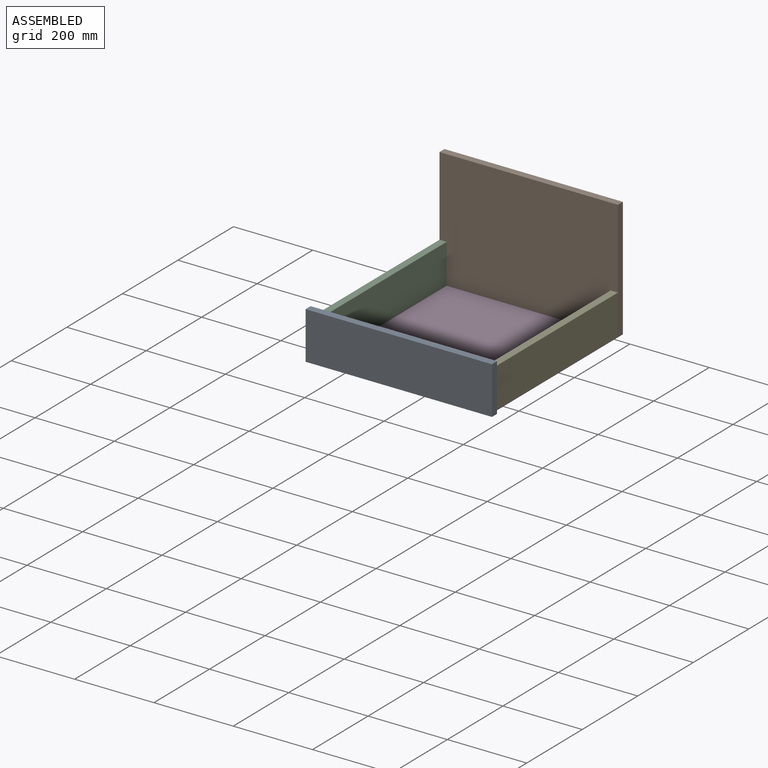
[diagram: assembled view]
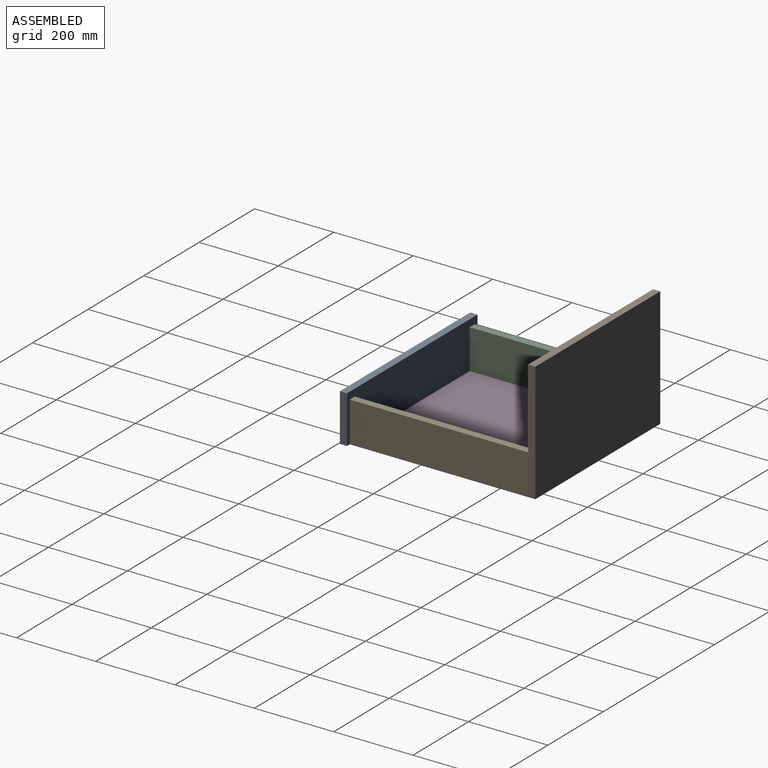
[diagram: assembled view, second angle]
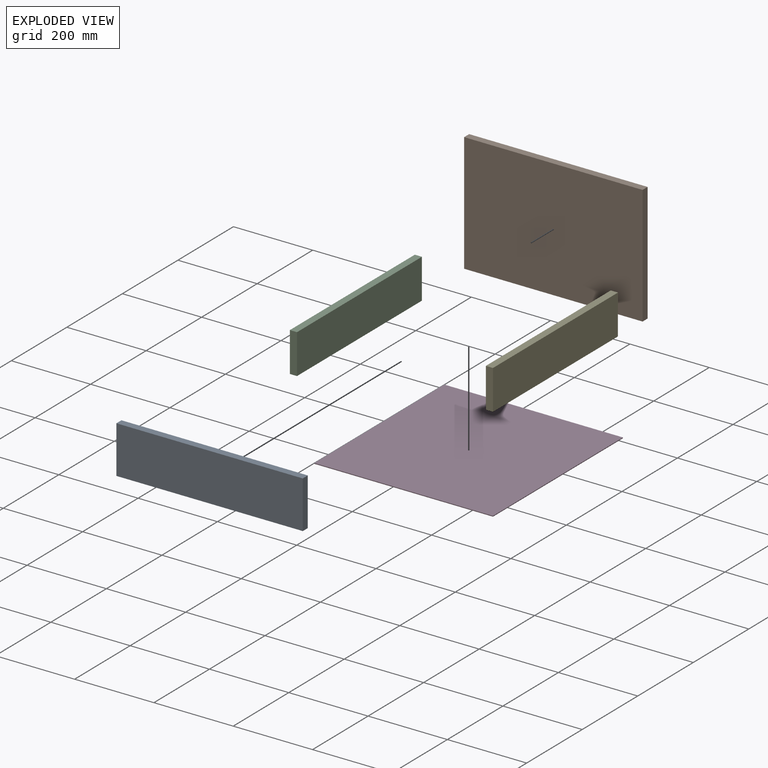
[diagram: exploded view]
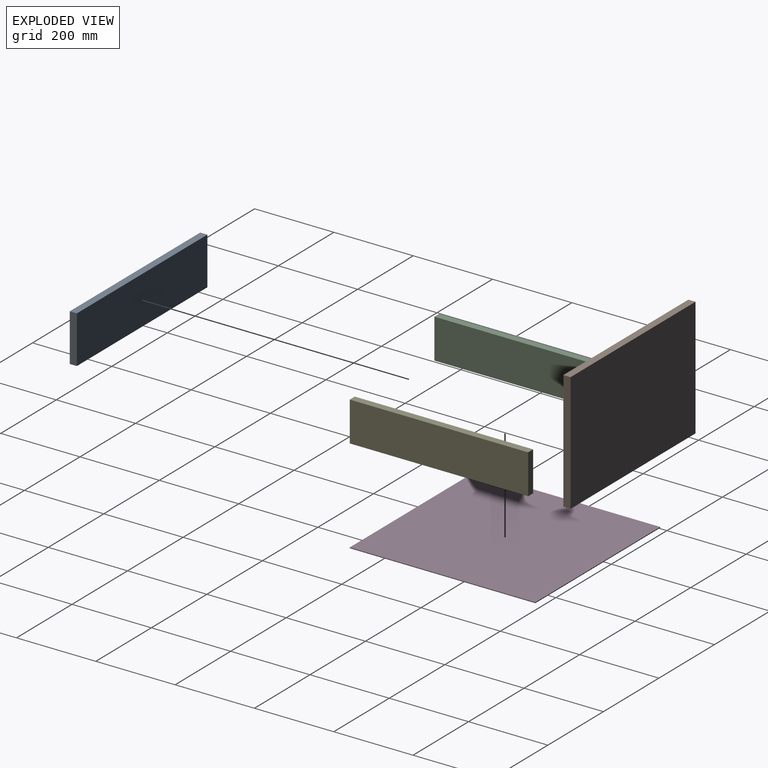
[diagram: exploded view, second angle]
ASSEMBLY  parts=5 mates=4
PART A: 6 faces, bbox 470x18x120 mm
  f0: plane 470x18mm, normal (0,0,1), area 8460mm2, adj f1,f3,f4,f5
  f1: plane 120x18mm, normal (-1,0,0), area 2160mm2, adj f0,f2,f4,f5
  f2: plane 470x18mm, normal (0,0,-1), area 8460mm2, adj f1,f3,f4,f5
  f3: plane 120x18mm, normal (1,0,0), area 2160mm2, adj f0,f2,f4,f5
  f4: plane 470x120mm, normal (0,-1,0), area 56400mm2, adj f0,f1,f2,f3
  f5: plane 470x120mm, normal (0,1,0), area 56400mm2, adj f0,f1,f2,f3
PART B: 6 faces, bbox 450x18x300 mm
  f0: plane 450x18mm, normal (0,0,1), area 8100mm2, adj f1,f3,f4,f5
  f1: plane 300x18mm, normal (-1,0,0), area 5400mm2, adj f0,f2,f4,f5
  f2: plane 450x18mm, normal (0,0,-1), area 8100mm2, adj f1,f3,f4,f5
  f3: plane 300x18mm, normal (1,0,0), area 5400mm2, adj f0,f2,f4,f5
  f4: plane 450x300mm, normal (0,-1,0), area 135000mm2, adj f0,f1,f2,f3
  f5: plane 450x300mm, normal (0,1,0), area 135000mm2, adj f0,f1,f2,f3
PART C: 6 faces, bbox 100x18x450 mm
  f0: plane 100x18mm, normal (0,0,1), area 1800mm2, adj f1,f3,f4,f5
  f1: plane 450x18mm, normal (-1,0,0), area 8100mm2, adj f0,f2,f4,f5
  f2: plane 100x18mm, normal (0,0,-1), area 1800mm2, adj f1,f3,f4,f5
  f3: plane 450x18mm, normal (1,0,0), area 8100mm2, adj f0,f2,f4,f5
  f4: plane 450x100mm, normal (0,-1,0), area 45000mm2, adj f0,f1,f2,f3
  f5: plane 450x100mm, normal (0,1,0), area 45000mm2, adj f0,f1,f2,f3
PART D: 6 faces, bbox 468x2x450 mm
  f0: plane 468x2mm, normal (0,0,1), area 936mm2, adj f1,f3,f4,f5
  f1: plane 450x2mm, normal (-1,0,0), area 900mm2, adj f0,f2,f4,f5
  f2: plane 468x2mm, normal (0,0,-1), area 936mm2, adj f1,f3,f4,f5
  f3: plane 450x2mm, normal (1,0,0), area 900mm2, adj f0,f2,f4,f5
  f4: plane 468x450mm, normal (0,-1,0), area 210600mm2, adj f0,f1,f2,f3
  f5: plane 468x450mm, normal (0,1,0), area 210600mm2, adj f0,f1,f2,f3
PART E: same geometry as C
PLACE A t=(79.13,-73.34,-23.7)mm
PLACE B t=(-689.97,394.66,476.76)mm
PLACE C rot(axis=(-0.58,-0.58,-0.58),120deg) t=(-965.78,161.42,-677.05)mm
PLACE D rot(axis=(-0.58,0.58,-0.58),120deg) t=(-749.02,166.79,-363.08)mm
PLACE E rot(axis=(-0.58,-0.58,-0.58),120deg) t=(-533.78,161.42,-677.05)mm
MATE fastened A.f5 <-> D.f3  axis (0,1,0) through (-758.78,-73.34,-363.08)mm
MATE fastened E.f0 <-> B.f4  axis (0,1,0) through (-533.78,376.66,-361.08)mm
MATE fastened D.f4 <-> B.f2  axis (0,0,1) through (-758.78,394.66,-361.08)mm
MATE fastened C.f0 <-> B.f4  axis (0,1,0) through (-983.78,376.66,-361.08)mm
